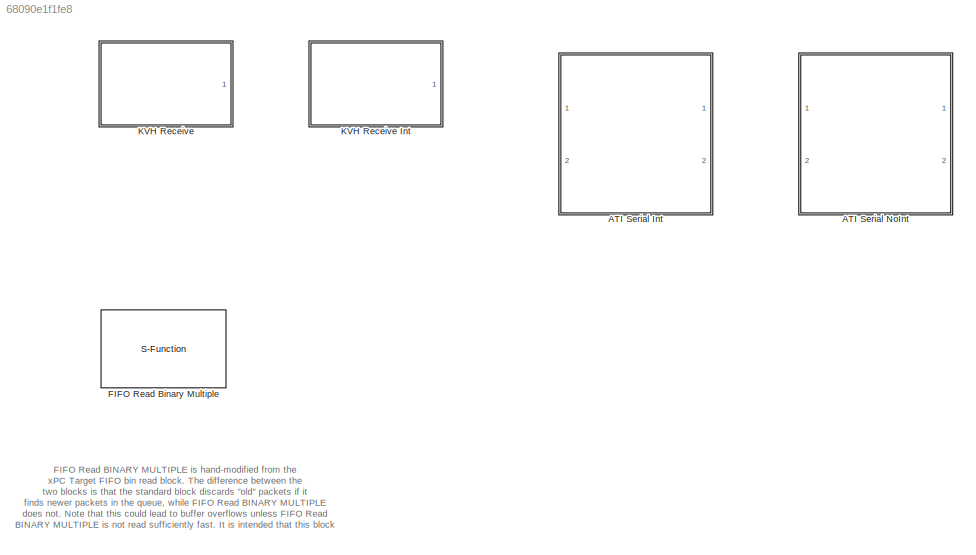
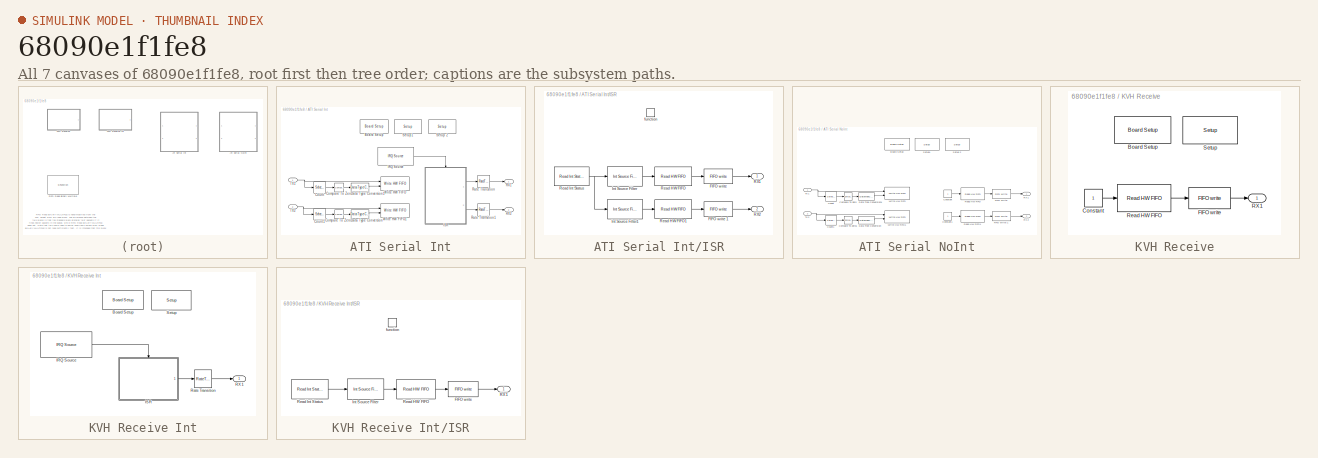
[diagram: thumbnail index - all 7 canvases of the model, root first then tree order]
MODEL slx_68090e1f1fe8
KIND library
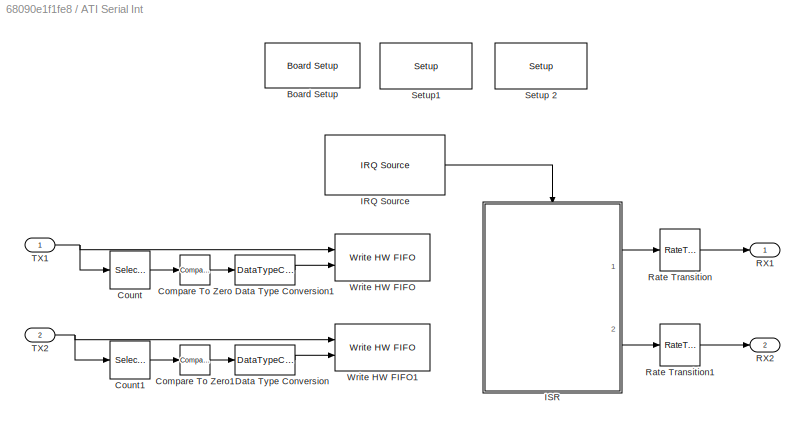
BLOCK [SubSystem] ATI Serial Int
  FunctionWithSeparateData = off
  MaskHideContents = off
  MinAlgLoopOccurrences = off
  Opaque = off
  Ports = [2, 2]
  PropExecContextOutsideSubsystem = off
  RTWSystemCode = Auto
  RequestExecContextInheritance = off
BLOCK [Reference] ATI Serial Int/Board Setup  REF=speedgoatlib/IO503/TEWS TPMC466  (lib defined in mdl_2b10c7445f81, mdl_649b3eec89a6, +4 more)
Internal blocks/Board Setup
  Ports = []
  SourceBlock = speedgoatlib/IO503/TEWS TPMC466\nInternal blocks/Board Setup
  SourceType = board_setup_XR17D15x
  irqnum = 5
  slot = [4 4]
BLOCK [Reference] ATI Serial Int/Compare To Zero  REF=simulink/Logic and Bit
Operations/Compare
To Zero
  OutDataTypeStr = uint8
  Ports = [1, 1]
  SourceBlock = simulink/Logic and Bit\nOperations/Compare\nTo Zero
  SourceType = Compare To Zero
  ZeroCross = on
  relop = >
BLOCK [Reference] ATI Serial Int/Compare To Zero1  REF=simulink/Logic and Bit
Operations/Compare
To Zero
  OutDataTypeStr = uint8
  Ports = [1, 1]
  SourceBlock = simulink/Logic and Bit\nOperations/Compare\nTo Zero
  SourceType = Compare To Zero
  ZeroCross = on
  relop = >
BLOCK [Selector] ATI Serial Int/Count
  IndexMode = Zero-based
  IndexOptions = Index vector (dialog)
  Indices = 0
  OutputSizes = 1
  Ports = [1, 1]
BLOCK [Selector] ATI Serial Int/Count1
  IndexMode = Zero-based
  IndexOptions = Index vector (dialog)
  Indices = 0
  OutputSizes = 1
  Ports = [1, 1]
BLOCK [DataTypeConversion] ATI Serial Int/Data Type Conversion
  OutDataTypeStr = uint32
  RndMeth = Floor
  SaturateOnIntegerOverflow = off
BLOCK [DataTypeConversion] ATI Serial Int/Data Type Conversion1
  OutDataTypeStr = uint32
  RndMeth = Floor
  SaturateOnIntegerOverflow = off
BLOCK [Reference] ATI Serial Int/IRQ Source  REF=xpclib/Asynchronous
Event/IRQ Source
  Ports = [0, 1]
  SourceBlock = xpclib/Asynchronous\nEvent/IRQ Source
  SourceType = xpcinterrupt
  b_type = None/Other
  irqNo = 5
  preempt = 10
  slot = [4 4]
BLOCK [SubSystem] ATI Serial Int/ISR
  FunctionWithSeparateData = off
  MaskHideContents = off
  MinAlgLoopOccurrences = off
  Opaque = off
  Ports = [0, 2, 0, 1]
  PropExecContextOutsideSubsystem = off
  RTWSystemCode = Auto
  RequestExecContextInheritance = off
BLOCK [Reference] ATI Serial Int/ISR/FIFO write   REF=xpcseriallib/FIFO write 
  Ports = [1, 1]
  SourceBlock = xpcseriallib/FIFO write
  SourceType = Asynchronous FIFO Block: writer
  id = IO503: IRQ 5 PCI Bus 4 Slot 4 (ATI F/T) 1
  inputtype = count+32 bit uint
  present = off
  sampletime = -1
  size = 256
BLOCK [Reference] ATI Serial Int/ISR/FIFO write 1  REF=xpcseriallib/FIFO write 
  Ports = [1, 1]
  SourceBlock = xpcseriallib/FIFO write
  SourceType = Asynchronous FIFO Block: writer
  id = IO503: IRQ 5 PCI Bus 4 Slot 4 (ATI F/T) 2
  inputtype = count+32 bit uint
  present = off
  sampletime = -1
  size = 256
BLOCK [Reference] ATI Serial Int/ISR/Int Source Filter  REF=speedgoatlib/IO503/TEWS TPMC466  (lib defined in mdl_2b10c7445f81, mdl_649b3eec89a6, +4 more)
Internal blocks/Int Source Filter
  Ports = [1, 1]
  SourceBlock = speedgoatlib/IO503/TEWS TPMC466\nInternal blocks/Int Source Filter
  SourceType = int_source_filter_XR17D15x
  port = 1
  value = Receive data
BLOCK [Reference] ATI Serial Int/ISR/Int Source Filter1  REF=speedgoatlib/IO503/TEWS TPMC466  (lib defined in mdl_2b10c7445f81, mdl_649b3eec89a6, +4 more)
Internal blocks/Int Source Filter
  Ports = [1, 1]
  SourceBlock = speedgoatlib/IO503/TEWS TPMC466\nInternal blocks/Int Source Filter
  SourceType = int_source_filter_XR17D15x
  port = 2
  value = Receive data
BLOCK [Outport] ATI Serial Int/ISR/RX1
  IconDisplay = Port number
  SourceOfInitialOutputValue = Input signal
BLOCK [Outport] ATI Serial Int/ISR/RX2
  IconDisplay = Port number
  Port = 2
  SourceOfInitialOutputValue = Input signal
BLOCK [Reference] ATI Serial Int/ISR/Read HW FIFO  REF=speedgoatlib/IO503/TEWS TPMC466  (lib defined in mdl_2b10c7445f81, mdl_649b3eec89a6, +4 more)
Internal blocks/Read HW FIFO
  Ports = [1, 1]
  SourceBlock = speedgoatlib/IO503/TEWS TPMC466\nInternal blocks/Read HW FIFO
  SourceType = read_hw_fifo_XR17D15x
  flush = off
  port = 1
  slot = [4 4]
BLOCK [Reference] ATI Serial Int/ISR/Read HW FIFO1  REF=speedgoatlib/IO503/TEWS TPMC466  (lib defined in mdl_2b10c7445f81, mdl_649b3eec89a6, +4 more)
Internal blocks/Read HW FIFO
  Ports = [1, 1]
  SourceBlock = speedgoatlib/IO503/TEWS TPMC466\nInternal blocks/Read HW FIFO
  SourceType = read_hw_fifo_XR17D15x
  flush = off
  port = 2
  slot = [4 4]
BLOCK [Reference] ATI Serial Int/ISR/Read Int Status  REF=speedgoatlib/IO503/TEWS TPMC466  (lib defined in mdl_2b10c7445f81, mdl_649b3eec89a6, +4 more)
Internal blocks/Read Int Status
  Ports = [0, 1]
  SourceBlock = speedgoatlib/IO503/TEWS TPMC466\nInternal blocks/Read Int Status
  SourceType = read_int_status_XR17D15x
  slot = [4 4]
BLOCK [TriggerPort] ATI Serial Int/ISR/function
  Ports = []
  StatesWhenEnabling = held
  TriggerType = function-call
BLOCK [Outport] ATI Serial Int/RX1
  IconDisplay = Port number
BLOCK [Outport] ATI Serial Int/RX2
  IconDisplay = Port number
  Port = 2
BLOCK [RateTransition] ATI Serial Int/Rate Transition
  Deterministic = off
  Integrity = off
BLOCK [RateTransition] ATI Serial Int/Rate Transition1
  Deterministic = off
  Integrity = off
BLOCK [Reference] ATI Serial Int/Setup 2  REF=speedgoatlib/IO503/TEWS TPMC466  (lib defined in mdl_2b10c7445f81, mdl_649b3eec89a6, +4 more)
Internal blocks/Setup 
  Ports = []
  SourceBlock = speedgoatlib/IO503/TEWS TPMC466\nInternal blocks/Setup
  SourceType = setup_XR17D15x
  bauddivisor = 1
  baudrate = 1382400
  ctsmode = none
  mode8x = 16x (standard)
  nstop = 1
  parity = Even
  port = 2
  prescale = off
  rlevel = half full (32)
  rs485delay = 0
  rs485mode = on
  slot = [4 4]
  standard = on
  transceiver = RS485 half-duplex
  width = 8
  xoff = 19
  xon = 17
  xonoff = none
BLOCK [Reference] ATI Serial Int/Setup1   REF=speedgoatlib/IO503/TEWS TPMC466  (lib defined in mdl_2b10c7445f81, mdl_649b3eec89a6, +4 more)
Internal blocks/Setup 
  Ports = []
  SourceBlock = speedgoatlib/IO503/TEWS TPMC466\nInternal blocks/Setup
  SourceType = setup_XR17D15x
  bauddivisor = 1
  baudrate = 1382400
  ctsmode = none
  mode8x = 16x (standard)
  nstop = 1
  parity = Even
  port = 1
  prescale = off
  rlevel = half full (32)
  rs485delay = 0
  rs485mode = on
  slot = [4 4]
  standard = on
  transceiver = RS485 half-duplex
  width = 8
  xoff = 19
  xon = 17
  xonoff = none
BLOCK [Inport] ATI Serial Int/TX1
  IconDisplay = Port number
BLOCK [Inport] ATI Serial Int/TX2
  IconDisplay = Port number
  Port = 2
BLOCK [Reference] ATI Serial Int/Write HW FIFO  REF=speedgoatlib/IO503/TEWS TPMC466  (lib defined in mdl_2b10c7445f81, mdl_649b3eec89a6, +4 more)
Internal blocks/Write HW FIFO
  Ports = [2]
  SourceBlock = speedgoatlib/IO503/TEWS TPMC466\nInternal blocks/Write HW FIFO
  SourceType = write_hw_fifo_XR17D15x
  port = 1
  slot = [4 4]
BLOCK [Reference] ATI Serial Int/Write HW FIFO1  REF=speedgoatlib/IO503/TEWS TPMC466  (lib defined in mdl_2b10c7445f81, mdl_649b3eec89a6, +4 more)
Internal blocks/Write HW FIFO
  Ports = [2]
  SourceBlock = speedgoatlib/IO503/TEWS TPMC466\nInternal blocks/Write HW FIFO
  SourceType = write_hw_fifo_XR17D15x
  port = 2
  slot = [4 4]
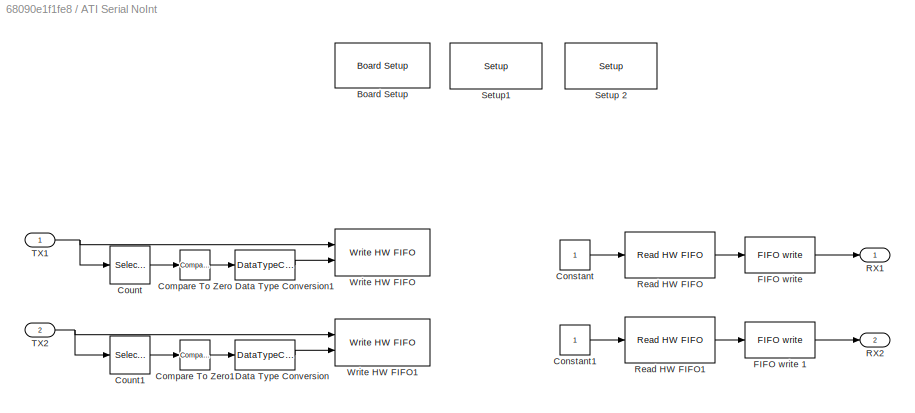
BLOCK [SubSystem] ATI Serial NoInt
  FunctionWithSeparateData = off
  MaskHideContents = off
  MinAlgLoopOccurrences = off
  Opaque = off
  Ports = [2, 2]
  PropExecContextOutsideSubsystem = off
  RTWSystemCode = Auto
  RequestExecContextInheritance = off
BLOCK [Reference] ATI Serial NoInt/Board Setup  REF=speedgoatlib/IO503/TEWS TPMC466  (lib defined in mdl_2b10c7445f81, mdl_649b3eec89a6, +4 more)
Internal blocks/Board Setup
  Ports = []
  SourceBlock = speedgoatlib/IO503/TEWS TPMC466\nInternal blocks/Board Setup
  SourceType = board_setup_XR17D15x
  irqnum = 5
  slot = [4 4]
BLOCK [Reference] ATI Serial NoInt/Compare To Zero  REF=simulink/Logic and Bit
Operations/Compare
To Zero
  OutDataTypeStr = uint8
  Ports = [1, 1]
  SourceBlock = simulink/Logic and Bit\nOperations/Compare\nTo Zero
  SourceType = Compare To Zero
  ZeroCross = on
  relop = >
BLOCK [Reference] ATI Serial NoInt/Compare To Zero1  REF=simulink/Logic and Bit
Operations/Compare
To Zero
  OutDataTypeStr = uint8
  Ports = [1, 1]
  SourceBlock = simulink/Logic and Bit\nOperations/Compare\nTo Zero
  SourceType = Compare To Zero
  ZeroCross = on
  relop = >
BLOCK [Constant] ATI Serial NoInt/Constant
  OutDataTypeStr = Inherit: Inherit via back propagation
BLOCK [Constant] ATI Serial NoInt/Constant1
  OutDataTypeStr = Inherit: Inherit via back propagation
BLOCK [Selector] ATI Serial NoInt/Count
  IndexMode = Zero-based
  IndexOptions = Index vector (dialog)
  Indices = 0
  OutputSizes = 1
  Ports = [1, 1]
BLOCK [Selector] ATI Serial NoInt/Count1
  IndexMode = Zero-based
  IndexOptions = Index vector (dialog)
  Indices = 0
  OutputSizes = 1
  Ports = [1, 1]
BLOCK [DataTypeConversion] ATI Serial NoInt/Data Type Conversion
  OutDataTypeStr = uint32
  RndMeth = Floor
  SaturateOnIntegerOverflow = off
BLOCK [DataTypeConversion] ATI Serial NoInt/Data Type Conversion1
  OutDataTypeStr = uint32
  RndMeth = Floor
  SaturateOnIntegerOverflow = off
BLOCK [Reference] ATI Serial NoInt/FIFO write   REF=xpcseriallib/FIFO write 
  Ports = [1, 1]
  SourceBlock = xpcseriallib/FIFO write
  SourceType = Asynchronous FIFO Block: writer
  id = IO503: IRQ 5 PCI Bus 4 Slot 4 (ATI F/T) 1
  inputtype = count+32 bit uint
  present = off
  sampletime = -1
  size = 256
BLOCK [Reference] ATI Serial NoInt/FIFO write 1  REF=xpcseriallib/FIFO write 
  Ports = [1, 1]
  SourceBlock = xpcseriallib/FIFO write
  SourceType = Asynchronous FIFO Block: writer
  id = IO503: IRQ 5 PCI Bus 4 Slot 4 (ATI F/T) 2
  inputtype = count+32 bit uint
  present = off
  sampletime = -1
  size = 256
BLOCK [Outport] ATI Serial NoInt/RX1
  IconDisplay = Port number
  SourceOfInitialOutputValue = Input signal
BLOCK [Outport] ATI Serial NoInt/RX2
  IconDisplay = Port number
  Port = 2
  SourceOfInitialOutputValue = Input signal
BLOCK [Reference] ATI Serial NoInt/Read HW FIFO  REF=speedgoatlib/IO503/TEWS TPMC466  (lib defined in mdl_2b10c7445f81, mdl_649b3eec89a6, +4 more)
Internal blocks/Read HW FIFO
  Ports = [1, 1]
  SourceBlock = speedgoatlib/IO503/TEWS TPMC466\nInternal blocks/Read HW FIFO
  SourceType = read_hw_fifo_XR17D15x
  flush = off
  port = 1
  slot = [4 4]
BLOCK [Reference] ATI Serial NoInt/Read HW FIFO1  REF=speedgoatlib/IO503/TEWS TPMC466  (lib defined in mdl_2b10c7445f81, mdl_649b3eec89a6, +4 more)
Internal blocks/Read HW FIFO
  Ports = [1, 1]
  SourceBlock = speedgoatlib/IO503/TEWS TPMC466\nInternal blocks/Read HW FIFO
  SourceType = read_hw_fifo_XR17D15x
  flush = off
  port = 2
  slot = [4 4]
BLOCK [Reference] ATI Serial NoInt/Setup 2  REF=speedgoatlib/IO503/TEWS TPMC466  (lib defined in mdl_2b10c7445f81, mdl_649b3eec89a6, +4 more)
Internal blocks/Setup 
  Ports = []
  SourceBlock = speedgoatlib/IO503/TEWS TPMC466\nInternal blocks/Setup
  SourceType = setup_XR17D15x
  bauddivisor = 1
  baudrate = 1382400
  ctsmode = none
  mode8x = 16x (standard)
  nstop = 1
  parity = Even
  port = 2
  prescale = off
  rlevel = almost full (56)
  rs485delay = 0
  rs485mode = on
  slot = [4 4]
  standard = on
  transceiver = RS485 half-duplex
  width = 8
  xoff = 19
  xon = 17
  xonoff = none
BLOCK [Reference] ATI Serial NoInt/Setup1   REF=speedgoatlib/IO503/TEWS TPMC466  (lib defined in mdl_2b10c7445f81, mdl_649b3eec89a6, +4 more)
Internal blocks/Setup 
  Ports = []
  SourceBlock = speedgoatlib/IO503/TEWS TPMC466\nInternal blocks/Setup
  SourceType = setup_XR17D15x
  bauddivisor = 1
  baudrate = 1382400
  ctsmode = none
  mode8x = 16x (standard)
  nstop = 1
  parity = Even
  port = 1
  prescale = off
  rlevel = almost full (56)
  rs485delay = 0
  rs485mode = on
  slot = [4 4]
  standard = on
  transceiver = RS485 half-duplex
  width = 8
  xoff = 19
  xon = 17
  xonoff = none
BLOCK [Inport] ATI Serial NoInt/TX1
  IconDisplay = Port number
BLOCK [Inport] ATI Serial NoInt/TX2
  IconDisplay = Port number
  Port = 2
BLOCK [Reference] ATI Serial NoInt/Write HW FIFO  REF=speedgoatlib/IO503/TEWS TPMC466  (lib defined in mdl_2b10c7445f81, mdl_649b3eec89a6, +4 more)
Internal blocks/Write HW FIFO
  Ports = [2]
  SourceBlock = speedgoatlib/IO503/TEWS TPMC466\nInternal blocks/Write HW FIFO
  SourceType = write_hw_fifo_XR17D15x
  port = 1
  slot = [4 4]
BLOCK [Reference] ATI Serial NoInt/Write HW FIFO1  REF=speedgoatlib/IO503/TEWS TPMC466  (lib defined in mdl_2b10c7445f81, mdl_649b3eec89a6, +4 more)
Internal blocks/Write HW FIFO
  Ports = [2]
  SourceBlock = speedgoatlib/IO503/TEWS TPMC466\nInternal blocks/Write HW FIFO
  SourceType = write_hw_fifo_XR17D15x
  port = 2
  slot = [4 4]
BLOCK [S-Function] FIFO Read Binary Multiple
  EnableBusSupport = off
  FunctionName = fiforeadbinhdrmultiple
  Parameters = maxsize, outputtype, sampletime, hdr, hlengths, lengths, hold, enable
  Ports = [1, 2]
BLOCK [SubSystem] KVH Receive
  FunctionWithSeparateData = off
  MaskHideContents = off
  MinAlgLoopOccurrences = off
  Opaque = off
  Ports = [0, 1]
  PropExecContextOutsideSubsystem = off
  RTWSystemCode = Auto
  RequestExecContextInheritance = off
BLOCK [SubSystem] KVH Receive Int
  FunctionWithSeparateData = off
  MaskHideContents = off
  MinAlgLoopOccurrences = off
  Opaque = off
  Ports = [0, 1]
  PropExecContextOutsideSubsystem = off
  RTWSystemCode = Auto
  RequestExecContextInheritance = off
BLOCK [Reference] KVH Receive Int/Board Setup  REF=speedgoatlib/IO503/TEWS TPMC466  (lib defined in mdl_2b10c7445f81, mdl_649b3eec89a6, +4 more)
Internal blocks/Board Setup
  Ports = []
  SourceBlock = speedgoatlib/IO503/TEWS TPMC466\nInternal blocks/Board Setup
  SourceType = board_setup_XR17D15x
  irqnum = 9
  slot = [4 5]
BLOCK [Reference] KVH Receive Int/IRQ Source  REF=xpclib/Asynchronous
Event/IRQ Source
  Ports = [0, 1]
  SourceBlock = xpclib/Asynchronous\nEvent/IRQ Source
  SourceType = xpcinterrupt
  b_type = None/Other
  irqNo = 9
  preempt = 10
  slot = [4 5]
BLOCK [SubSystem] KVH Receive Int/ISR
  FunctionWithSeparateData = off
  MaskHideContents = off
  MinAlgLoopOccurrences = off
  Opaque = off
  Ports = [0, 1, 0, 1]
  PropExecContextOutsideSubsystem = off
  RTWSystemCode = Auto
  RequestExecContextInheritance = off
BLOCK [Reference] KVH Receive Int/ISR/FIFO write   REF=xpcseriallib/FIFO write 
  Ports = [1, 1]
  SourceBlock = xpcseriallib/FIFO write
  SourceType = Asynchronous FIFO Block: writer
  id = IO503: IRQ 9 PCI Bus 4 Slot 5 (KVH IMU)
  inputtype = count+32 bit uint
  present = off
  sampletime = -1
  size = 256
BLOCK [Reference] KVH Receive Int/ISR/Int Source Filter  REF=speedgoatlib/IO503/TEWS TPMC466  (lib defined in mdl_2b10c7445f81, mdl_649b3eec89a6, +4 more)
Internal blocks/Int Source Filter
  Ports = [1, 1]
  SourceBlock = speedgoatlib/IO503/TEWS TPMC466\nInternal blocks/Int Source Filter
  SourceType = int_source_filter_XR17D15x
  port = 1
  value = Receive data
BLOCK [Outport] KVH Receive Int/ISR/RX1
  IconDisplay = Port number
  SourceOfInitialOutputValue = Input signal
BLOCK [Reference] KVH Receive Int/ISR/Read HW FIFO  REF=speedgoatlib/IO503/TEWS TPMC466  (lib defined in mdl_2b10c7445f81, mdl_649b3eec89a6, +4 more)
Internal blocks/Read HW FIFO
  Ports = [1, 1]
  SourceBlock = speedgoatlib/IO503/TEWS TPMC466\nInternal blocks/Read HW FIFO
  SourceType = read_hw_fifo_XR17D15x
  flush = off
  port = 1
  slot = [4 5]
BLOCK [Reference] KVH Receive Int/ISR/Read Int Status  REF=speedgoatlib/IO503/TEWS TPMC466  (lib defined in mdl_2b10c7445f81, mdl_649b3eec89a6, +4 more)
Internal blocks/Read Int Status
  Ports = [0, 1]
  SourceBlock = speedgoatlib/IO503/TEWS TPMC466\nInternal blocks/Read Int Status
  SourceType = read_int_status_XR17D15x
  slot = [4 5]
BLOCK [TriggerPort] KVH Receive Int/ISR/function
  Ports = []
  StatesWhenEnabling = held
  TriggerType = function-call
BLOCK [Outport] KVH Receive Int/RX1
  IconDisplay = Port number
BLOCK [RateTransition] KVH Receive Int/Rate Transition
  Deterministic = off
  Integrity = off
BLOCK [Reference] KVH Receive Int/Setup   REF=speedgoatlib/IO503/TEWS TPMC466  (lib defined in mdl_2b10c7445f81, mdl_649b3eec89a6, +4 more)
Internal blocks/Setup 
  Ports = []
  SourceBlock = speedgoatlib/IO503/TEWS TPMC466\nInternal blocks/Setup
  SourceType = setup_XR17D15x
  bauddivisor = 1
  baudrate = 921600
  ctsmode = none
  mode8x = 16x (standard)
  nstop = 1
  parity = None
  port = 1
  prescale = off
  rlevel = almost full (56)
  rs485delay = 0
  rs485mode = off
  slot = [4 5]
  standard = on
  transceiver = RS422
  width = 8
  xoff = 19
  xon = 17
  xonoff = none
BLOCK [Reference] KVH Receive/Board Setup  REF=speedgoatlib/IO503/TEWS TPMC466  (lib defined in mdl_2b10c7445f81, mdl_649b3eec89a6, +4 more)
Internal blocks/Board Setup
  Ports = []
  SourceBlock = speedgoatlib/IO503/TEWS TPMC466\nInternal blocks/Board Setup
  SourceType = board_setup_XR17D15x
  irqnum = 9
  slot = [4 5]
BLOCK [Constant] KVH Receive/Constant
  OutDataTypeStr = uint32
BLOCK [Reference] KVH Receive/FIFO write   REF=xpcseriallib/FIFO write 
  Ports = [1, 1]
  SourceBlock = xpcseriallib/FIFO write
  SourceType = Asynchronous FIFO Block: writer
  id = IO503: IRQ 9 PCI Bus 4 Slot 5 (KVH IMU)
  inputtype = count+32 bit uint
  present = off
  sampletime = -1
  size = 256
BLOCK [Outport] KVH Receive/RX1
  IconDisplay = Port number
BLOCK [Reference] KVH Receive/Read HW FIFO  REF=speedgoatlib/IO503/TEWS TPMC466  (lib defined in mdl_2b10c7445f81, mdl_649b3eec89a6, +4 more)
Internal blocks/Read HW FIFO
  Ports = [1, 1]
  SourceBlock = speedgoatlib/IO503/TEWS TPMC466\nInternal blocks/Read HW FIFO
  SourceType = read_hw_fifo_XR17D15x
  flush = off
  port = 1
  slot = [4 5]
BLOCK [Reference] KVH Receive/Setup   REF=speedgoatlib/IO503/TEWS TPMC466  (lib defined in mdl_2b10c7445f81, mdl_649b3eec89a6, +4 more)
Internal blocks/Setup 
  Ports = []
  SourceBlock = speedgoatlib/IO503/TEWS TPMC466\nInternal blocks/Setup
  SourceType = setup_XR17D15x
  bauddivisor = 1
  baudrate = 921600
  ctsmode = none
  mode8x = 16x (standard)
  nstop = 1
  parity = None
  port = 1
  prescale = off
  rlevel = almost full (56)
  rs485delay = 0
  rs485mode = off
  slot = [4 5]
  standard = on
  transceiver = RS422
  width = 8
  xoff = 19
  xon = 17
  xonoff = none
ANNOTATION (root): FIFO Read BINARY MULTIPLE is hand-modified from the xPC Target FIFO bin read block. The difference between the two blocks is that the standard block discards "old" packets if it finds newer packets in the queue, while FIFO Read BINARY MULTIPLE does not. Note that this could lead to buffer overflows unless FIFO Read BINARY MULTIPLE is not read sufficiently fast. It is intended that this block be pl...<+99ch>
LINE ATI Serial Int/Compare To Zero1:1 -> ATI Serial Int/Data Type Conversion:1
LINE ATI Serial Int/Compare To Zero:1 -> ATI Serial Int/Data Type Conversion1:1
LINE ATI Serial Int/Count1:1 -> ATI Serial Int/Compare To Zero1:1
LINE ATI Serial Int/Count:1 -> ATI Serial Int/Compare To Zero:1
LINE ATI Serial Int/Data Type Conversion1:1 -> ATI Serial Int/Write HW FIFO:2
LINE ATI Serial Int/Data Type Conversion:1 -> ATI Serial Int/Write HW FIFO1:2
LINE ATI Serial Int/IRQ Source:1 -> ATI Serial Int/ISR:trigger
LINE ATI Serial Int/ISR/FIFO write 1:1 -> ATI Serial Int/ISR/RX2:1
LINE ATI Serial Int/ISR/FIFO write :1 -> ATI Serial Int/ISR/RX1:1
LINE ATI Serial Int/ISR/Int Source Filter1:1 -> ATI Serial Int/ISR/Read HW FIFO1:1
LINE ATI Serial Int/ISR/Int Source Filter:1 -> ATI Serial Int/ISR/Read HW FIFO:1
LINE ATI Serial Int/ISR/Read HW FIFO1:1 -> ATI Serial Int/ISR/FIFO write 1:1
LINE ATI Serial Int/ISR/Read HW FIFO:1 -> ATI Serial Int/ISR/FIFO write :1
NET ATI Serial Int/ISR/Read Int Status:1 -> ATI Serial Int/ISR/Int Source Filter1:1, ATI Serial Int/ISR/Int Source Filter:1
LINE ATI Serial Int/ISR:1 -> ATI Serial Int/Rate Transition:1
LINE ATI Serial Int/ISR:2 -> ATI Serial Int/Rate Transition1:1
LINE ATI Serial Int/Rate Transition1:1 -> ATI Serial Int/RX2:1
LINE ATI Serial Int/Rate Transition:1 -> ATI Serial Int/RX1:1
NET ATI Serial Int/TX1:1 -> ATI Serial Int/Count:1, ATI Serial Int/Write HW FIFO:1
NET ATI Serial Int/TX2:1 -> ATI Serial Int/Count1:1, ATI Serial Int/Write HW FIFO1:1
LINE ATI Serial NoInt/Compare To Zero1:1 -> ATI Serial NoInt/Data Type Conversion:1
LINE ATI Serial NoInt/Compare To Zero:1 -> ATI Serial NoInt/Data Type Conversion1:1
LINE ATI Serial NoInt/Constant1:1 -> ATI Serial NoInt/Read HW FIFO1:1
LINE ATI Serial NoInt/Constant:1 -> ATI Serial NoInt/Read HW FIFO:1
LINE ATI Serial NoInt/Count1:1 -> ATI Serial NoInt/Compare To Zero1:1
LINE ATI Serial NoInt/Count:1 -> ATI Serial NoInt/Compare To Zero:1
LINE ATI Serial NoInt/Data Type Conversion1:1 -> ATI Serial NoInt/Write HW FIFO:2
LINE ATI Serial NoInt/Data Type Conversion:1 -> ATI Serial NoInt/Write HW FIFO1:2
LINE ATI Serial NoInt/FIFO write 1:1 -> ATI Serial NoInt/RX2:1
LINE ATI Serial NoInt/FIFO write :1 -> ATI Serial NoInt/RX1:1
LINE ATI Serial NoInt/Read HW FIFO1:1 -> ATI Serial NoInt/FIFO write 1:1
LINE ATI Serial NoInt/Read HW FIFO:1 -> ATI Serial NoInt/FIFO write :1
NET ATI Serial NoInt/TX1:1 -> ATI Serial NoInt/Count:1, ATI Serial NoInt/Write HW FIFO:1
NET ATI Serial NoInt/TX2:1 -> ATI Serial NoInt/Count1:1, ATI Serial NoInt/Write HW FIFO1:1
LINE KVH Receive Int/IRQ Source:1 -> KVH Receive Int/ISR:trigger
LINE KVH Receive Int/ISR/FIFO write :1 -> KVH Receive Int/ISR/RX1:1
LINE KVH Receive Int/ISR/Int Source Filter:1 -> KVH Receive Int/ISR/Read HW FIFO:1
LINE KVH Receive Int/ISR/Read HW FIFO:1 -> KVH Receive Int/ISR/FIFO write :1
LINE KVH Receive Int/ISR/Read Int Status:1 -> KVH Receive Int/ISR/Int Source Filter:1
LINE KVH Receive Int/ISR:1 -> KVH Receive Int/Rate Transition:1
LINE KVH Receive Int/Rate Transition:1 -> KVH Receive Int/RX1:1
LINE KVH Receive/Constant:1 -> KVH Receive/Read HW FIFO:1
LINE KVH Receive/FIFO write :1 -> KVH Receive/RX1:1
LINE KVH Receive/Read HW FIFO:1 -> KVH Receive/FIFO write :1
note: NET lines group one-source signal fan-out (src -> all destinations, sorted); 1:1 wires keep LINE
